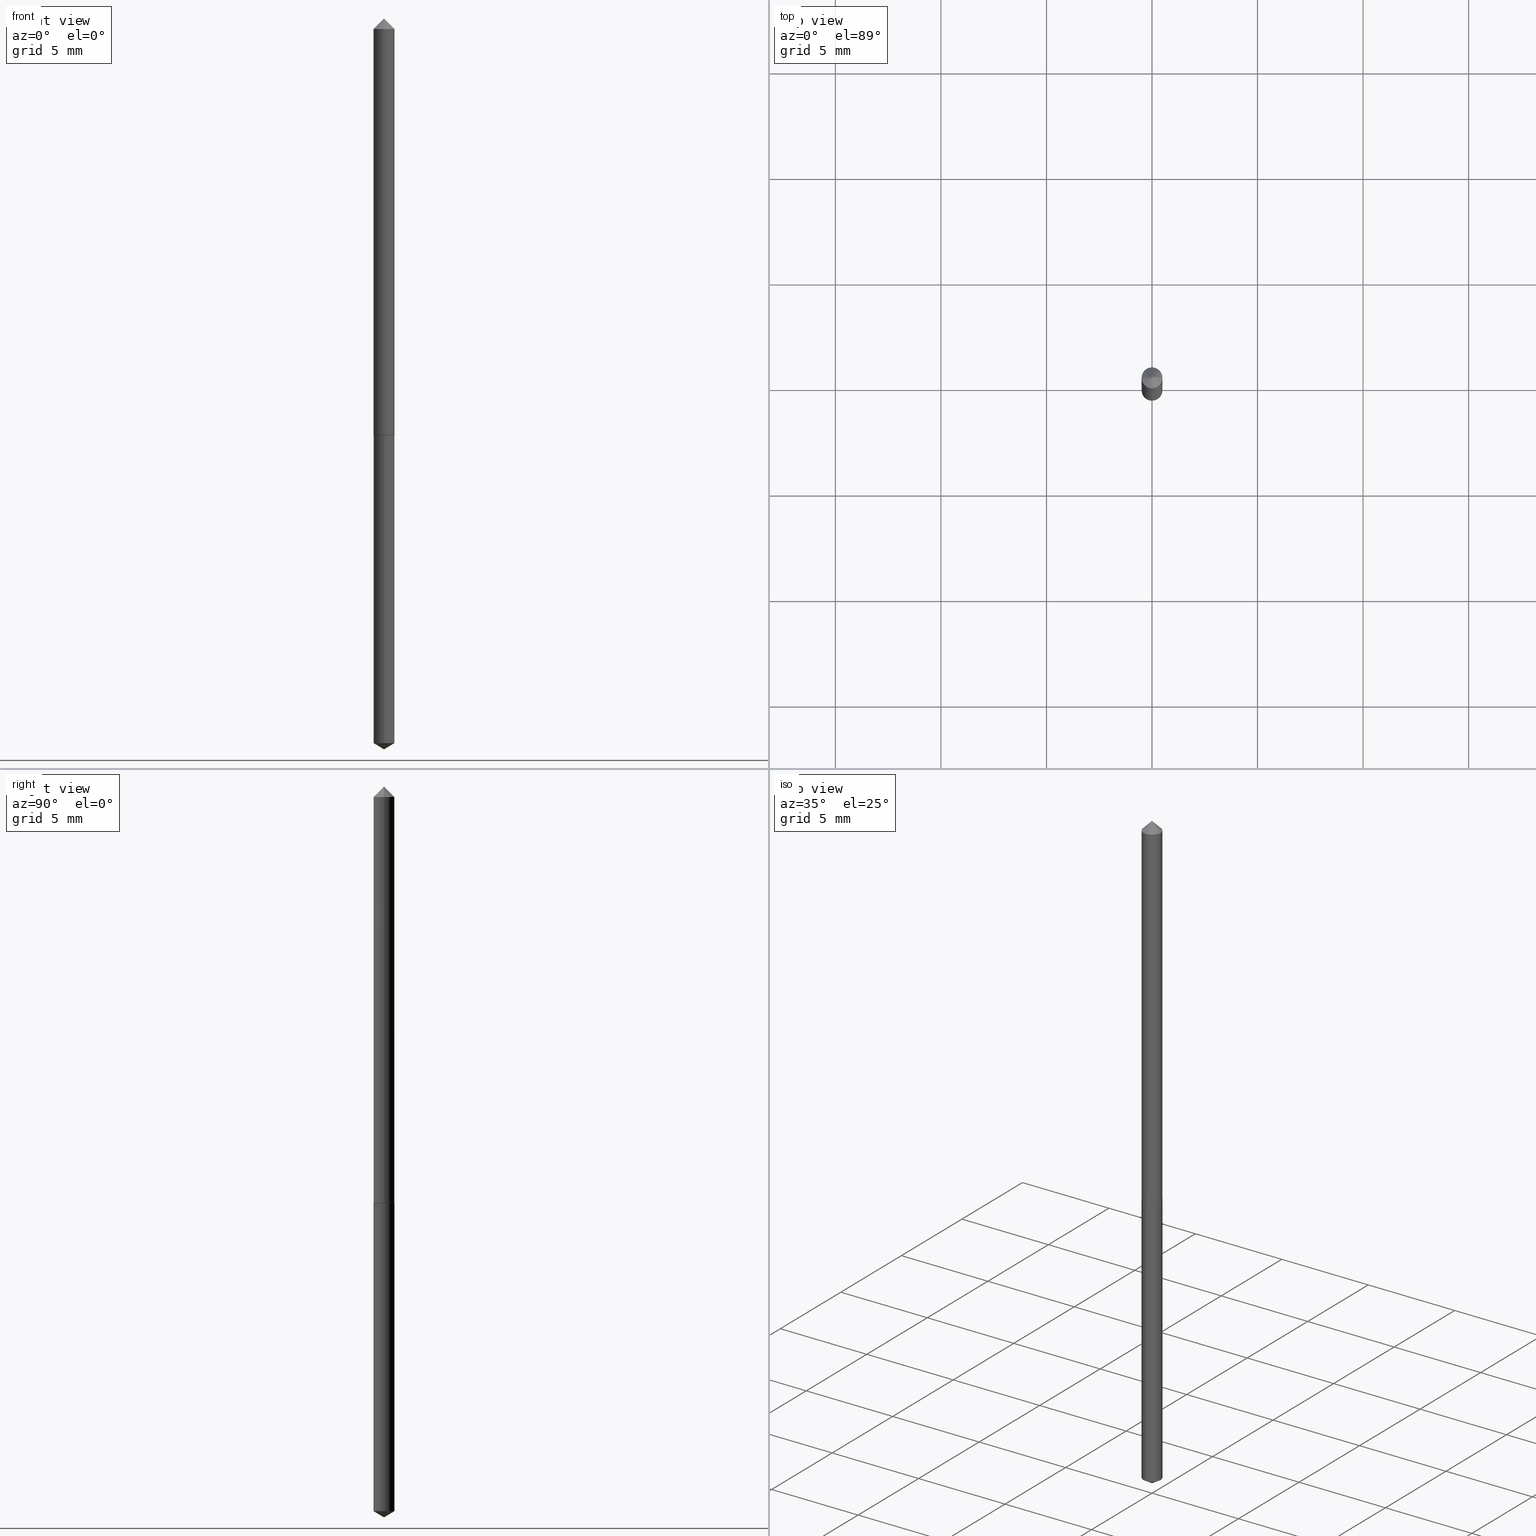
[diagram: canonical four-view strip — front | top / right | iso, engineering-drawing reading convention]
A machine part, canonical four-view strip (front | top / right | iso — engineering-drawing reading convention). The complete STEP part file that produces these views, byte-faithful:
ISO-10303-21;
HEADER;
FILE_DESCRIPTION (( 'STEP AP203' ),
    '1' );
FILE_NAME ('57097.STEP',
    '2024-04-22T22:05:55',
    ( '' ),
    ( '' ),
    'SwSTEP 2.0',
    'SolidWorks 2023',
    '' );
FILE_SCHEMA (( 'CONFIG_CONTROL_DESIGN' ));
ENDSEC;

DATA;
#1 = AXIS2_PLACEMENT_3D ( 'NONE', #55, #59, #218 ) ;
#2 = CARTESIAN_POINT ( 'NONE',  ( 1.929474888080073026E-29, -2.754778776347242283E-15, -0.7890000000000001457 ) ) ;
#3 = FACE_OUTER_BOUND ( 'NONE', #31, .T. ) ;
#4 = APPLICATION_PROTOCOL_DEFINITION ( 'international standard', 'config_control_design', 1994, #221 ) ;
#5 = EDGE_LOOP ( 'NONE', ( #9, #196, #199 ) ) ;
#6 = AXIS2_PLACEMENT_3D ( 'NONE', #135, #72, #233 ) ;
#7 = EDGE_LOOP ( 'NONE', ( #174, #228, #344 ) ) ;
#8 = PERSON_AND_ORGANIZATION_ROLE ( 'creator' ) ;
#9 = ORIENTED_EDGE ( 'NONE', *, *, #316, .F. ) ;
#10 = PERSON_AND_ORGANIZATION_ROLE ( 'design_supplier' ) ;
#11 = VERTEX_POINT ( 'NONE', #78 ) ;
#12 = CLOSED_SHELL ( 'NONE', ( #274, #161, #109, #250, #243, #81, #342 ) ) ;
#13 = AXIS2_PLACEMENT_3D ( 'NONE', #2, #306, #247 ) ;
#14 = DIRECTION ( 'NONE',  ( 0.000000000000000000, 0.000000000000000000, 1.000000000000000000 ) ) ;
#15 = ADVANCED_FACE ( 'NONE', ( #182 ), #34, .T. ) ;
#16 = LOCAL_TIME ( 18, 5, 55.00000000000000000, #88 ) ;
#17 = FACE_OUTER_BOUND ( 'NONE', #67, .T. ) ;
#18 = DIRECTION ( 'NONE',  ( 1.000000000000000000, -6.982962677686271444E-15, 0.000000000000000000 ) ) ;
#19 = ORIENTED_EDGE ( 'NONE', *, *, #238, .F. ) ;
#20 = AXIS2_PLACEMENT_3D ( 'NONE', #325, #154, #294 ) ;
#21 = DIRECTION ( 'NONE',  ( -2.445468806185136597E-29, 3.491481338843145583E-15, 1.000000000000000000 ) ) ;
#22 = ADVANCED_FACE ( 'NONE', ( #298 ), #363, .T. ) ;
#23 = LINE ( 'NONE', #136, #239 ) ;
#24 = CC_DESIGN_PERSON_AND_ORGANIZATION_ASSIGNMENT ( #254, #8, ( #230 ) ) ;
#25 = DIRECTION ( 'NONE',  ( 0.7071067811864569785, -2.468850131081308455E-15, 0.7071067811866380559 ) ) ;
#26 = DIRECTION ( 'NONE',  ( -2.445430218985429457E-29, 3.491536597909373207E-15, 1.000000000000000000 ) ) ;
#27 = LINE ( 'NONE', #83, #191 ) ;
#28 = APPROVAL_PERSON_ORGANIZATION ( #281, #283, #147 ) ;
#29 = DIRECTION ( 'NONE',  ( -2.445430218985429457E-29, 3.491536597909373207E-15, 1.000000000000000000 ) ) ;
#30 = DIRECTION ( 'NONE',  ( -1.000000000000000000, 6.982962677686265922E-15, 0.000000000000000000 ) ) ;
#31 = EDGE_LOOP ( 'NONE', ( #63, #231 ) ) ;
#32 = DATE_AND_TIME ( #289, #319 ) ;
#33 = EDGE_LOOP ( 'NONE', ( #94, #61, #171, #328 ) ) ;
#34 = CONICAL_SURFACE ( 'NONE', #57, 65.52281426576830370, 1.029744258676653645 ) ;
#35 = CIRCLE ( 'NONE', #13, 0.01900000000000005851 ) ;
#36 = EDGE_CURVE ( 'NONE', #76, #145, #212, .T. ) ;
#37 = ORIENTED_EDGE ( 'NONE', *, *, #338, .F. ) ;
#38 = CARTESIAN_POINT ( 'NONE',  ( 1.929474888080072746E-29, -2.754778776347241889E-15, -0.7889999999999999236 ) ) ;
#39 = EDGE_LOOP ( 'NONE', ( #249, #92, #37, #89 ) ) ;
#40 = VECTOR ( 'NONE', #160, 39.37007874015748143 ) ;
#41 = PERSON_AND_ORGANIZATION_ROLE ( 'creator' ) ;
#42 = MANIFOLD_SOLID_BREP ( 'Body-Move/Copy2[1]', #190 ) ;
#43 = CARTESIAN_POINT ( 'NONE',  ( 0.01950000000000010059, -2.889200807892702791E-15, -0.7884999999999999787 ) ) ;
#44 = PRODUCT_RELATED_PRODUCT_CATEGORY ( 'detail', '', ( #170 ) ) ;
#45 = CIRCLE ( 'NONE', #220, 0.01950000000000010059 ) ;
#46 = DIRECTION ( 'NONE',  ( -2.445468806185136877E-29, 3.491481338843145188E-15, 1.000000000000000000 ) ) ;
#47 = CARTESIAN_POINT ( 'NONE',  ( 3.333844423459752764E-29, -4.759909649311378600E-15, -1.363283217928962454 ) ) ;
#48 = ORIENTED_EDGE ( 'NONE', *, *, #71, .F. ) ;
#49 = CARTESIAN_POINT ( 'NONE',  ( 7.642090019328603538E-31, -1.091087918388490390E-16, -0.03125000000000021511 ) ) ;
#50 = AXIS2_PLACEMENT_3D ( 'NONE', #279, #82, #30 ) ;
#51 = CARTESIAN_POINT ( 'NONE',  ( -1.361677722148628817E-16, -0.01950000000000275124, -0.7889999999999999236 ) ) ;
#52 = CC_DESIGN_APPROVAL ( #64, ( #245 ) ) ;
#53 = CC_DESIGN_PERSON_AND_ORGANIZATION_ASSIGNMENT ( #60, #62, ( #170 ) ) ;
#54 = DIRECTION ( 'NONE',  ( -2.445430218985429457E-29, 3.491536597909373207E-15, 1.000000000000000000 ) ) ;
#55 = CARTESIAN_POINT ( 'NONE',  ( 1.928252153676979944E-29, -2.753033035677819991E-15, -0.7884999999999999787 ) ) ;
#56 = DIRECTION ( 'NONE',  ( -2.445430218985429457E-29, 3.491536597909373207E-15, 1.000000000000000000 ) ) ;
#57 = AXIS2_PLACEMENT_3D ( 'NONE', #299, #26, #313 ) ;
#58 = VECTOR ( 'NONE', #25, 39.37007874015748143 ) ;
#59 = DIRECTION ( 'NONE',  ( -2.445468806185136597E-29, 3.491481338843145583E-15, 1.000000000000000000 ) ) ;
#60 = PERSON_AND_ORGANIZATION ( #358, #96 ) ;
#61 = ORIENTED_EDGE ( 'NONE', *, *, #36, .T. ) ;
#62 = PERSON_AND_ORGANIZATION_ROLE ( 'design_owner' ) ;
#63 = ORIENTED_EDGE ( 'NONE', *, *, #338, .T. ) ;
#64 = APPROVAL ( #176, 'UNSPECIFIED' ) ;
#65 = CARTESIAN_POINT ( 'NONE',  ( 7.642090019328603538E-31, -1.091087918388490390E-16, -0.03125000000000021511 ) ) ;
#66 =( LENGTH_UNIT ( ) NAMED_UNIT ( * ) SI_UNIT ( $, .METRE. ) );
#67 = EDGE_LOOP ( 'NONE', ( #198, #286, #116, #19 ) ) ;
#68 = ORIENTED_EDGE ( 'NONE', *, *, #36, .F. ) ;
#69 = CIRCLE ( 'NONE', #208, 0.01949999999999999997 ) ;
#70 = AXIS2_PLACEMENT_3D ( 'NONE', #38, #339, #287 ) ;
#71 = EDGE_CURVE ( 'NONE', #203, #257, #102, .T. ) ;
#72 = DIRECTION ( 'NONE',  ( -2.445468806185136597E-29, 3.491481338843145583E-15, 1.000000000000000000 ) ) ;
#73 = PERSON_AND_ORGANIZATION ( #358, #96 ) ;
#74 = LOCAL_TIME ( 18, 5, 55.00000000000000000, #180 ) ;
#75 = CARTESIAN_POINT ( 'NONE',  ( -0.01950000000000004854, 1.385558334732198812E-16, -9.591923425997091666E-31 ) ) ;
#76 = VERTEX_POINT ( 'NONE', #177 ) ;
#77 = DIRECTION ( 'NONE',  ( -2.445468806185136597E-29, 3.491481338843145583E-15, 1.000000000000000000 ) ) ;
#78 = CARTESIAN_POINT ( 'NONE',  ( -1.361677722148488301E-16, -0.01950000000000476352, -1.363283217928962454 ) ) ;
#79 = FACE_OUTER_BOUND ( 'NONE', #33, .T. ) ;
#80 = DIRECTION ( 'NONE',  ( 1.000000000000000000, -6.982962677686271444E-15, 0.000000000000000000 ) ) ;
#81 = ADVANCED_FACE ( 'NONE', ( #240 ), #297, .T. ) ;
#82 = DIRECTION ( 'NONE',  ( 2.445468806185136597E-29, -3.491481338843145583E-15, -1.000000000000000000 ) ) ;
#83 = CARTESIAN_POINT ( 'NONE',  ( -0.01950000000000010059, -2.614477202204599937E-15, -0.7884999999999999787 ) ) ;
#84 = CYLINDRICAL_SURFACE ( 'NONE', #175, 0.01949999999999999997 ) ;
#85 = CIRCLE ( 'NONE', #70, 0.01949999999999999997 ) ;
#86 = EDGE_CURVE ( 'NONE', #11, #285, #133, .T. ) ;
#87 = ORIENTED_EDGE ( 'NONE', *, *, #316, .T. ) ;
#88 = COORDINATED_UNIVERSAL_TIME_OFFSET ( 5, 0, .BEHIND. ) ;
#89 = ORIENTED_EDGE ( 'NONE', *, *, #308, .F. ) ;
#90 = ORIENTED_EDGE ( 'NONE', *, *, #189, .F. ) ;
#91 = AXIS2_PLACEMENT_3D ( 'NONE', #169, #122, #194 ) ;
#92 = ORIENTED_EDGE ( 'NONE', *, *, #189, .T. ) ;
#93 = APPROVAL_STATUS ( 'not_yet_approved' ) ;
#94 = ORIENTED_EDGE ( 'NONE', *, *, #280, .F. ) ;
#95 = DIRECTION ( 'NONE',  ( 1.000000000000000000, -6.982962677686267499E-15, 4.876176775795936353E-29 ) ) ;
#96 = ORGANIZATION ( 'UNSPECIFIED', 'UNSPECIFIED', '' ) ;
#97 = LOCAL_TIME ( 18, 5, 55.00000000000000000, #296 ) ;
#98 = SHAPE_DEFINITION_REPRESENTATION ( #121, #211 ) ;
#99 = LINE ( 'NONE', #156, #103 ) ;
#100 = ORIENTED_EDGE ( 'NONE', *, *, #137, .T. ) ;
#101 = CARTESIAN_POINT ( 'NONE',  ( 0.000000000000000000, 0.000000000000000000, 0.000000000000000000 ) ) ;
#102 = CIRCLE ( 'NONE', #151, 0.01950000000000000344 ) ;
#103 = VECTOR ( 'NONE', #324, 39.37007874015748854 ) ;
#104 = DIRECTION ( 'NONE',  ( 1.000000000000000000, -6.982962677686265922E-15, 0.000000000000000000 ) ) ;
#105 = CARTESIAN_POINT ( 'NONE',  ( 3.362466551104965117E-29, -4.800862822125388456E-15, -1.375000000000000000 ) ) ;
#106 = CARTESIAN_POINT ( 'NONE',  ( 1.928252153676979944E-29, -2.753033035677819991E-15, -0.7884999999999999787 ) ) ;
#107 = ORIENTED_EDGE ( 'NONE', *, *, #86, .F. ) ;
#108 = CC_DESIGN_APPROVAL ( #155, ( #230 ) ) ;
#109 = ADVANCED_FACE ( 'NONE', ( #17 ), #301, .T. ) ;
#110 = CARTESIAN_POINT ( 'NONE',  ( 1.929474888080072746E-29, -2.754778776347241889E-15, -0.7889999999999999236 ) ) ;
#111 = DIRECTION ( 'NONE',  ( 6.982962677686265922E-15, 1.000000000000000000, -3.491536597909373207E-15 ) ) ;
#112 = PLANE ( 'NONE',  #360 ) ;
#113 = AXIS2_PLACEMENT_3D ( 'NONE', #181, #322, #235 ) ;
#114 = DATE_AND_TIME ( #309, #184 ) ;
#115 = AXIS2_PLACEMENT_3D ( 'NONE', #355, #21, #18 ) ;
#116 = ORIENTED_EDGE ( 'NONE', *, *, #153, .F. ) ;
#117 = EDGE_CURVE ( 'NONE', #285, #11, #69, .T. ) ;
#118 = DATE_TIME_ROLE ( 'creation_date' ) ;
#119 = PERSON_AND_ORGANIZATION ( #358, #96 ) ;
#120 = ORIENTED_EDGE ( 'NONE', *, *, #137, .F. ) ;
#121 = PRODUCT_DEFINITION_SHAPE ( 'NONE', 'NONE',  #352 ) ;
#122 = DIRECTION ( 'NONE',  ( -2.445468806185136597E-29, 3.491481338843145583E-15, 1.000000000000000000 ) ) ;
#123 = ORIENTED_EDGE ( 'NONE', *, *, #304, .F. ) ;
#124 = CONICAL_SURFACE ( 'NONE', #50, 0.01950000000000000344, 0.7853981633974449483 ) ;
#125 = MECHANICAL_CONTEXT ( 'NONE', #204, 'mechanical' ) ;
#126 = PERSON_AND_ORGANIZATION ( #358, #96 ) ;
#127 = CONICAL_SURFACE ( 'NONE', #1, 0.01950000000000010059, 0.7853981633973202703 ) ;
#128 = CC_DESIGN_PERSON_AND_ORGANIZATION_ASSIGNMENT ( #73, #262, ( #245 ) ) ;
#129 = DIRECTION ( 'NONE',  ( -2.445468806185136597E-29, 3.491481338843145583E-15, 1.000000000000000000 ) ) ;
#130 = EDGE_CURVE ( 'NONE', #148, #203, #354, .T. ) ;
#131 = APPROVAL_ROLE ( '' ) ;
#132 = CYLINDRICAL_SURFACE ( 'NONE', #6, 0.01950000000000004854 ) ;
#133 = CIRCLE ( 'NONE', #113, 0.01949999999999999997 ) ;
#134 = AXIS2_PLACEMENT_3D ( 'NONE', #65, #252, #229 ) ;
#135 = CARTESIAN_POINT ( 'NONE',  ( 0.000000000000000000, 0.000000000000000000, 0.000000000000000000 ) ) ;
#136 = CARTESIAN_POINT ( 'NONE',  ( 3.362527975644799677E-29, -4.800775623318879708E-15, -1.375000000000000000 ) ) ;
#137 = EDGE_CURVE ( 'NONE', #315, #257, #270, .T. ) ;
#138 = DIRECTION ( 'NONE',  ( 1.000000000000000000, -6.982962677686265922E-15, 4.876176775795935793E-29 ) ) ;
#139 = CARTESIAN_POINT ( 'NONE',  ( -9.291428327861137563E-28, 1.326612515611114561E-13, 37.99507874015748143 ) ) ;
#140 = DIRECTION ( 'NONE',  ( 0.7071067811865451302, -7.319954787623248157E-15, -0.7071067811865499042 ) ) ;
#141 = LINE ( 'NONE', #244, #277 ) ;
#142 = ORIENTED_EDGE ( 'NONE', *, *, #187, .F. ) ;
#143 = DATE_AND_TIME ( #197, #16 ) ;
#144 = VECTOR ( 'NONE', #29, 39.37007874015748143 ) ;
#145 = VERTEX_POINT ( 'NONE', #263 ) ;
#146 = PERSON_AND_ORGANIZATION ( #358, #96 ) ;
#147 = APPROVAL_ROLE ( '' ) ;
#148 = VERTEX_POINT ( 'NONE', #43 ) ;
#149 =( NAMED_UNIT ( * ) PLANE_ANGLE_UNIT ( ) SI_UNIT ( $, .RADIAN. ) );
#150 = VERTEX_POINT ( 'NONE', #158 ) ;
#151 = AXIS2_PLACEMENT_3D ( 'NONE', #49, #359, #104 ) ;
#152 = AXIS2_PLACEMENT_3D ( 'NONE', #303, #54, #335 ) ;
#153 = EDGE_CURVE ( 'NONE', #148, #315, #258, .T. ) ;
#154 = DIRECTION ( 'NONE',  ( -2.445468806185136597E-29, 3.491481338843145583E-15, 1.000000000000000000 ) ) ;
#155 = APPROVAL ( #341, 'UNSPECIFIED' ) ;
#156 = CARTESIAN_POINT ( 'NONE',  ( 3.362466551104965117E-29, -4.800862822125388456E-15, -1.375000000000000000 ) ) ;
#157 = CIRCLE ( 'NONE', #152, 0.01949999999999999997 ) ;
#158 = CARTESIAN_POINT ( 'NONE',  ( -1.361677722148628817E-16, -0.01950000000000275124, -0.7889999999999999236 ) ) ;
#159 = DIRECTION ( 'NONE',  ( -2.445430218985429457E-29, 3.491536597909373207E-15, 1.000000000000000000 ) ) ;
#160 = DIRECTION ( 'NONE',  ( -2.445430218985429457E-29, 3.491536597909373207E-15, 1.000000000000000000 ) ) ;
#161 = ADVANCED_FACE ( 'NONE', ( #209 ), #132, .T. ) ;
#162 = ORIENTED_EDGE ( 'NONE', *, *, #130, .T. ) ;
#163 = CARTESIAN_POINT ( 'NONE',  ( -2.031386624105738011E-29, -8.426957900034326842E-15, -0.7889999999999999236 ) ) ;
#164 = DIRECTION ( 'NONE',  ( 2.445430218985429176E-29, -3.491536597909373207E-15, -1.000000000000000000 ) ) ;
#165 = CARTESIAN_POINT ( 'NONE',  ( 1.929474888080072746E-29, -2.754778776347241889E-15, -0.7889999999999999236 ) ) ;
#166 = DIRECTION ( 'NONE',  ( -2.445430218985429457E-29, 3.491536597909373207E-15, 1.000000000000000000 ) ) ;
#167 = ORIENTED_EDGE ( 'NONE', *, *, #195, .F. ) ;
#168 = EDGE_LOOP ( 'NONE', ( #120, #340, #162, #201 ) ) ;
#169 = CARTESIAN_POINT ( 'NONE',  ( 7.642090019328603538E-31, -1.091087918388490390E-16, -0.03125000000000021511 ) ) ;
#170 = PRODUCT ( '57097', '57097', '', ( #125 ) ) ;
#171 = ORIENTED_EDGE ( 'NONE', *, *, #238, .T. ) ;
#172 = ORIENTED_EDGE ( 'NONE', *, *, #308, .T. ) ;
#173 = COORDINATED_UNIVERSAL_TIME_OFFSET ( 5, 0, .BEHIND. ) ;
#174 = ORIENTED_EDGE ( 'NONE', *, *, #205, .F. ) ;
#175 = AXIS2_PLACEMENT_3D ( 'NONE', #110, #166, #192 ) ;
#176 = APPROVAL_STATUS ( 'not_yet_approved' ) ;
#177 = CARTESIAN_POINT ( 'NONE',  ( -0.01900000000000005851, -2.617126429378711138E-15, -0.7890000000000001457 ) ) ;
#178 = CARTESIAN_POINT ( 'NONE',  ( 0.01950000000000004854, -1.361677722148825539E-16, 9.508544712802099179E-31 ) ) ;
#179 = AXIS2_PLACEMENT_3D ( 'NONE', #317, #14, #348 ) ;
#180 = COORDINATED_UNIVERSAL_TIME_OFFSET ( 5, 0, .BEHIND. ) ;
#181 = CARTESIAN_POINT ( 'NONE',  ( 3.333844423459752764E-29, -4.759909649311378600E-15, -1.363283217928962454 ) ) ;
#182 = FACE_OUTER_BOUND ( 'NONE', #347, .T. ) ;
#183 = FACE_OUTER_BOUND ( 'NONE', #39, .T. ) ;
#184 = LOCAL_TIME ( 18, 5, 55.00000000000000000, #255 ) ;
#185 = CARTESIAN_POINT ( 'NONE',  ( 1.385558334732387892E-16, 0.01949999999999724523, -0.7889999999999999236 ) ) ;
#186 = CARTESIAN_POINT ( 'NONE',  ( -0.01950000000000000344, -1.292515080285113506E-15, -0.03125000000000021511 ) ) ;
#187 = EDGE_CURVE ( 'NONE', #288, #11, #99, .T. ) ;
#188 = CARTESIAN_POINT ( 'NONE',  ( 0.01950000000000010059, -2.889200807892702791E-15, -0.7884999999999999787 ) ) ;
#189 = EDGE_CURVE ( 'NONE', #285, #226, #307, .T. ) ;
#190 = CLOSED_SHELL ( 'NONE', ( #256, #15, #292, #22, #241 ) ) ;
#191 = VECTOR ( 'NONE', #305, 39.37007874015748143 ) ;
#192 = DIRECTION ( 'NONE',  ( -6.982962677686264344E-15, -1.000000000000000000, 0.000000000000000000 ) ) ;
#193 = DESIGN_CONTEXT ( 'detailed design', #221, 'design' ) ;
#194 = DIRECTION ( 'NONE',  ( 1.000000000000000000, -6.982962677686265922E-15, 0.000000000000000000 ) ) ;
#195 = EDGE_CURVE ( 'NONE', #145, #76, #35, .T. ) ;
#196 = ORIENTED_EDGE ( 'NONE', *, *, #187, .T. ) ;
#197 = CALENDAR_DATE ( 2024, 22, 4 ) ;
#198 = ORIENTED_EDGE ( 'NONE', *, *, #195, .T. ) ;
#199 = ORIENTED_EDGE ( 'NONE', *, *, #117, .F. ) ;
#200 = LENGTH_MEASURE_WITH_UNIT ( LENGTH_MEASURE( 0.02539999999999999897 ), #66 );
#201 = ORIENTED_EDGE ( 'NONE', *, *, #350, .F. ) ;
#202 =( CONVERSION_BASED_UNIT ( 'INCH', #200 ) LENGTH_UNIT ( ) NAMED_UNIT ( #356 ) );
#203 = VERTEX_POINT ( 'NONE', #332 ) ;
#204 = APPLICATION_CONTEXT ( 'configuration controlled 3d designs of mechanical parts and assemblies' ) ;
#205 = EDGE_CURVE ( 'NONE', #253, #203, #141, .T. ) ;
#206 = AXIS2_PLACEMENT_3D ( 'NONE', #207, #129, #271 ) ;
#207 = CARTESIAN_POINT ( 'NONE',  ( 1.929474888080073026E-29, -2.754778776347242283E-15, -0.7890000000000001457 ) ) ;
#208 = AXIS2_PLACEMENT_3D ( 'NONE', #47, #159, #265 ) ;
#209 = FACE_OUTER_BOUND ( 'NONE', #259, .T. ) ;
#210 = CC_DESIGN_PERSON_AND_ORGANIZATION_ASSIGNMENT ( #146, #41, ( #352 ) ) ;
#211 = ADVANCED_BREP_SHAPE_REPRESENTATION ( '57097', ( #42, #334, #179 ), #345 ) ;
#212 = CIRCLE ( 'NONE', #206, 0.01900000000000005851 ) ;
#213 = DIRECTION ( 'NONE',  ( -6.982962677686264344E-15, -1.000000000000000000, 0.000000000000000000 ) ) ;
#214 = DIRECTION ( 'NONE',  ( -6.982962677686264344E-15, -1.000000000000000000, 3.468864327941600919E-15 ) ) ;
#215 = CC_DESIGN_DATE_AND_TIME_ASSIGNMENT ( #143, #118, ( #352 ) ) ;
#216 = FACE_OUTER_BOUND ( 'NONE', #310, .T. ) ;
#217 = FACE_OUTER_BOUND ( 'NONE', #343, .T. ) ;
#218 = DIRECTION ( 'NONE',  ( 1.000000000000000000, -6.982962677686271444E-15, 0.000000000000000000 ) ) ;
#219 = CARTESIAN_POINT ( 'NONE',  ( 2.836167268008044232E-31, -4.155846979266979156E-17, -0.01175000000000007983 ) ) ;
#220 = AXIS2_PLACEMENT_3D ( 'NONE', #106, #330, #80 ) ;
#221 = APPLICATION_CONTEXT ( 'configuration controlled 3d designs of mechanical parts and assemblies' ) ;
#222 = PERSON_AND_ORGANIZATION ( #358, #96 ) ;
#223 = ORIENTED_EDGE ( 'NONE', *, *, #205, .T. ) ;
#224 = EDGE_CURVE ( 'NONE', #226, #150, #157, .T. ) ;
#225 = APPROVAL_DATE_TIME ( #32, #283 ) ;
#226 = VERTEX_POINT ( 'NONE', #278 ) ;
#227 = FACE_OUTER_BOUND ( 'NONE', #7, .T. ) ;
#228 = ORIENTED_EDGE ( 'NONE', *, *, #304, .T. ) ;
#229 = DIRECTION ( 'NONE',  ( -1.000000000000000000, 6.982962677686265922E-15, 0.000000000000000000 ) ) ;
#230 = PRODUCT_DEFINITION_FORMATION_WITH_SPECIFIED_SOURCE ( 'ANY', '', #170, .NOT_KNOWN. ) ;
#231 = ORIENTED_EDGE ( 'NONE', *, *, #224, .T. ) ;
#232 = EDGE_LOOP ( 'NONE', ( #90, #349, #172, #318 ) ) ;
#233 = DIRECTION ( 'NONE',  ( 1.000000000000000000, -6.982962677686267499E-15, 4.876176775795936353E-29 ) ) ;
#234 = CC_DESIGN_DATE_AND_TIME_ASSIGNMENT ( #351, #269, ( #245 ) ) ;
#235 = DIRECTION ( 'NONE',  ( -6.982962677686264344E-15, -1.000000000000000000, 0.000000000000000000 ) ) ;
#236 = AXIS2_PLACEMENT_3D ( 'NONE', #101, #77, #95 ) ;
#237 = VECTOR ( 'NONE', #300, 39.37007874015748143 ) ;
#238 = EDGE_CURVE ( 'NONE', #145, #148, #362, .T. ) ;
#239 = VECTOR ( 'NONE', #242, 39.37007874015748143 ) ;
#240 = FACE_OUTER_BOUND ( 'NONE', #168, .T. ) ;
#241 = ADVANCED_FACE ( 'NONE', ( #3 ), #364, .F. ) ;
#242 = DIRECTION ( 'NONE',  ( 6.090539988449776858E-15, 0.8571673007021136659, 0.5150380749100519351 ) ) ;
#243 = ADVANCED_FACE ( 'NONE', ( #79 ), #127, .T. ) ;
#244 = CARTESIAN_POINT ( 'NONE',  ( 0.01950000000000000344, -2.428885027953939081E-16, -0.03125000000000021511 ) ) ;
#245 = SECURITY_CLASSIFICATION ( '', '', #268 ) ;
#246 = LINE ( 'NONE', #329, #237 ) ;
#247 = DIRECTION ( 'NONE',  ( 1.000000000000000000, -6.982962677686260400E-15, 0.000000000000000000 ) ) ;
#248 = APPROVAL_ROLE ( '' ) ;
#249 = ORIENTED_EDGE ( 'NONE', *, *, #86, .T. ) ;
#250 = ADVANCED_FACE ( 'NONE', ( #216 ), #112, .F. ) ;
#251 = CONICAL_SURFACE ( 'NONE', #134, 0.01950000000000000344, 0.7853981633974449483 ) ;
#252 = DIRECTION ( 'NONE',  ( 2.445468806185136597E-29, -3.491481338843145583E-15, -1.000000000000000000 ) ) ;
#253 = VERTEX_POINT ( 'NONE', #219 ) ;
#254 = PERSON_AND_ORGANIZATION ( #358, #96 ) ;
#255 = COORDINATED_UNIVERSAL_TIME_OFFSET ( 5, 0, .BEHIND. ) ;
#256 = ADVANCED_FACE ( 'NONE', ( #183 ), #84, .T. ) ;
#257 = VERTEX_POINT ( 'NONE', #186 ) ;
#258 = CIRCLE ( 'NONE', #115, 0.01950000000000010059 ) ;
#259 = EDGE_LOOP ( 'NONE', ( #290, #100, #48, #312 ) ) ;
#260 = CALENDAR_DATE ( 2024, 22, 4 ) ;
#261 = CARTESIAN_POINT ( 'NONE',  ( 1.929474888080072746E-29, -2.754778776347241889E-15, -0.7889999999999999236 ) ) ;
#262 = PERSON_AND_ORGANIZATION_ROLE ( 'classification_officer' ) ;
#263 = CARTESIAN_POINT ( 'NONE',  ( 0.01900000000000005851, -2.887455067223281682E-15, -0.7890000000000001457 ) ) ;
#264 = CALENDAR_DATE ( 2024, 22, 4 ) ;
#265 = DIRECTION ( 'NONE',  ( -6.982962677686264344E-15, -1.000000000000000000, 0.000000000000000000 ) ) ;
#266 = CC_DESIGN_APPROVAL ( #283, ( #352 ) ) ;
#267 = APPROVAL_PERSON_ORGANIZATION ( #126, #64, #131 ) ;
#268 = SECURITY_CLASSIFICATION_LEVEL ( 'unclassified' ) ;
#269 = DATE_TIME_ROLE ( 'classification_date' ) ;
#270 = LINE ( 'NONE', #75, #295 ) ;
#271 = DIRECTION ( 'NONE',  ( 1.000000000000000000, -6.982962677686260400E-15, 0.000000000000000000 ) ) ;
#272 = CONICAL_SURFACE ( 'NONE', #326, 65.52281426576830370, 1.029744258676653645 ) ;
#273 = CARTESIAN_POINT ( 'NONE',  ( -0.01950000000000010059, -2.614477202204599937E-15, -0.7884999999999999787 ) ) ;
#274 = ADVANCED_FACE ( 'NONE', ( #217 ), #124, .T. ) ;
#275 = DIRECTION ( 'NONE',  ( -2.438088387897960049E-29, 3.491481338843145188E-15, 1.000000000000000000 ) ) ;
#276 = FACE_OUTER_BOUND ( 'NONE', #5, .T. ) ;
#277 = VECTOR ( 'NONE', #140, 39.37007874015748143 ) ;
#278 = CARTESIAN_POINT ( 'NONE',  ( 1.385558334732529147E-16, 0.01949999999999724523, -0.7889999999999999236 ) ) ;
#279 = CARTESIAN_POINT ( 'NONE',  ( 7.642090019328603538E-31, -1.091087918388490390E-16, -0.03125000000000021511 ) ) ;
#280 = EDGE_CURVE ( 'NONE', #76, #315, #27, .T. ) ;
#281 = PERSON_AND_ORGANIZATION ( #358, #96 ) ;
#282 = ORIENTED_EDGE ( 'NONE', *, *, #71, .T. ) ;
#283 = APPROVAL ( #93, 'UNSPECIFIED' ) ;
#284 = AXIS2_PLACEMENT_3D ( 'NONE', #165, #164, #111 ) ;
#285 = VERTEX_POINT ( 'NONE', #361 ) ;
#286 = ORIENTED_EDGE ( 'NONE', *, *, #280, .T. ) ;
#287 = DIRECTION ( 'NONE',  ( -6.982962677686264344E-15, -1.000000000000000000, 0.000000000000000000 ) ) ;
#288 = VERTEX_POINT ( 'NONE', #105 ) ;
#289 = CALENDAR_DATE ( 2024, 22, 4 ) ;
#290 = ORIENTED_EDGE ( 'NONE', *, *, #153, .T. ) ;
#291 = DIRECTION ( 'NONE',  ( -2.445468806185136877E-29, 3.491481338843145188E-15, 1.000000000000000000 ) ) ;
#292 = ADVANCED_FACE ( 'NONE', ( #276 ), #272, .T. ) ;
#293 = APPROVAL_DATE_TIME ( #323, #64 ) ;
#294 = DIRECTION ( 'NONE',  ( 1.000000000000000000, -6.982962677686271444E-15, 0.000000000000000000 ) ) ;
#295 = VECTOR ( 'NONE', #291, 39.37007874015748143 ) ;
#296 = COORDINATED_UNIVERSAL_TIME_OFFSET ( 5, 0, .BEHIND. ) ;
#297 = CYLINDRICAL_SURFACE ( 'NONE', #236, 0.01950000000000004854 ) ;
#298 = FACE_OUTER_BOUND ( 'NONE', #232, .T. ) ;
#299 = CARTESIAN_POINT ( 'NONE',  ( -9.291428327861137563E-28, 1.326612515611114561E-13, 37.99507874015748143 ) ) ;
#300 = DIRECTION ( 'NONE',  ( -0.7071067811865451302, 2.468850131082231817E-15, -0.7071067811865499042 ) ) ;
#301 = CONICAL_SURFACE ( 'NONE', #20, 0.01950000000000010059, 0.7853981633973202703 ) ;
#302 = VECTOR ( 'NONE', #46, 39.37007874015748143 ) ;
#303 = CARTESIAN_POINT ( 'NONE',  ( 1.929474888080072746E-29, -2.754778776347241889E-15, -0.7889999999999999236 ) ) ;
#304 = EDGE_CURVE ( 'NONE', #253, #257, #246, .T. ) ;
#305 = DIRECTION ( 'NONE',  ( -0.7071067811864569785, 7.493145998870027572E-15, 0.7071067811866380559 ) ) ;
#306 = DIRECTION ( 'NONE',  ( -2.445468806185136597E-29, 3.491481338843145583E-15, 1.000000000000000000 ) ) ;
#307 = LINE ( 'NONE', #185, #144 ) ;
#308 = EDGE_CURVE ( 'NONE', #11, #150, #333, .T. ) ;
#309 = CALENDAR_DATE ( 2024, 22, 4 ) ;
#310 = EDGE_LOOP ( 'NONE', ( #167, #68 ) ) ;
#311 = APPROVAL_DATE_TIME ( #114, #155 ) ;
#312 = ORIENTED_EDGE ( 'NONE', *, *, #130, .F. ) ;
#313 = DIRECTION ( 'NONE',  ( -6.982962677686264344E-15, -1.000000000000000000, 3.468864327941600919E-15 ) ) ;
#314 = APPLICATION_PROTOCOL_DEFINITION ( 'international standard', 'config_control_design', 1994, #204 ) ;
#315 = VERTEX_POINT ( 'NONE', #273 ) ;
#316 = EDGE_CURVE ( 'NONE', #288, #285, #23, .T. ) ;
#317 = CARTESIAN_POINT ( 'NONE',  ( 0.000000000000000000, 0.000000000000000000, 0.000000000000000000 ) ) ;
#318 = ORIENTED_EDGE ( 'NONE', *, *, #224, .F. ) ;
#319 = LOCAL_TIME ( 18, 5, 55.00000000000000000, #173 ) ;
#320 = EDGE_CURVE ( 'NONE', #315, #148, #45, .T. ) ;
#321 = CC_DESIGN_PERSON_AND_ORGANIZATION_ASSIGNMENT ( #119, #10, ( #230 ) ) ;
#322 = DIRECTION ( 'NONE',  ( -2.445430218985429457E-29, 3.491536597909373207E-15, 1.000000000000000000 ) ) ;
#323 = DATE_AND_TIME ( #260, #97 ) ;
#324 = DIRECTION ( 'NONE',  ( -5.985567269335938913E-15, -0.8571673007021100021, 0.5150380749100579303 ) ) ;
#325 = CARTESIAN_POINT ( 'NONE',  ( 1.928252153676979944E-29, -2.753033035677819991E-15, -0.7884999999999999787 ) ) ;
#326 = AXIS2_PLACEMENT_3D ( 'NONE', #139, #56, #214 ) ;
#327 = CC_DESIGN_SECURITY_CLASSIFICATION ( #245, ( #230 ) ) ;
#328 = ORIENTED_EDGE ( 'NONE', *, *, #320, .F. ) ;
#329 = CARTESIAN_POINT ( 'NONE',  ( -0.01950000000000000344, 2.705898037603317589E-17, -0.03125000000000021511 ) ) ;
#330 = DIRECTION ( 'NONE',  ( -2.445468806185136597E-29, 3.491481338843145583E-15, 1.000000000000000000 ) ) ;
#331 = AXIS2_PLACEMENT_3D ( 'NONE', #261, #357, #213 ) ;
#332 = CARTESIAN_POINT ( 'NONE',  ( 0.01950000000000000344, -2.452765640537312601E-16, -0.03125000000000021511 ) ) ;
#333 = LINE ( 'NONE', #51, #40 ) ;
#334 = MANIFOLD_SOLID_BREP ( 'Body-Move/Copy2[2]', #12 ) ;
#335 = DIRECTION ( 'NONE',  ( -6.982962677686264344E-15, -1.000000000000000000, 0.000000000000000000 ) ) ;
#336 = CIRCLE ( 'NONE', #91, 0.01950000000000000344 ) ;
#337 = UNCERTAINTY_MEASURE_WITH_UNIT (LENGTH_MEASURE( 1.000000000000000082E-05 ), #202, 'distance_accuracy_value', 'NONE');
#338 = EDGE_CURVE ( 'NONE', #150, #226, #85, .T. ) ;
#339 = DIRECTION ( 'NONE',  ( -2.445430218985429457E-29, 3.491536597909373207E-15, 1.000000000000000000 ) ) ;
#340 = ORIENTED_EDGE ( 'NONE', *, *, #320, .T. ) ;
#341 = APPROVAL_STATUS ( 'not_yet_approved' ) ;
#342 = ADVANCED_FACE ( 'NONE', ( #227 ), #251, .T. ) ;
#343 = EDGE_LOOP ( 'NONE', ( #123, #223, #282 ) ) ;
#344 = ORIENTED_EDGE ( 'NONE', *, *, #350, .T. ) ;
#345 =( GEOMETRIC_REPRESENTATION_CONTEXT ( 3 ) GLOBAL_UNCERTAINTY_ASSIGNED_CONTEXT ( ( #337 ) ) GLOBAL_UNIT_ASSIGNED_CONTEXT ( ( #202, #149, #346 ) ) REPRESENTATION_CONTEXT ( 'NONE', 'WORKASPACE' ) );
#346 =( NAMED_UNIT ( * ) SI_UNIT ( $, .STERADIAN. ) SOLID_ANGLE_UNIT ( ) );
#347 = EDGE_LOOP ( 'NONE', ( #142, #87, #107 ) ) ;
#348 = DIRECTION ( 'NONE',  ( 1.000000000000000000, 0.000000000000000000, 0.000000000000000000 ) ) ;
#349 = ORIENTED_EDGE ( 'NONE', *, *, #117, .T. ) ;
#350 = EDGE_CURVE ( 'NONE', #257, #203, #336, .T. ) ;
#351 = DATE_AND_TIME ( #264, #74 ) ;
#352 = PRODUCT_DEFINITION ( 'UNKNOWN', '', #230, #193 ) ;
#353 = APPROVAL_PERSON_ORGANIZATION ( #222, #155, #248 ) ;
#354 = LINE ( 'NONE', #178, #302 ) ;
#355 = CARTESIAN_POINT ( 'NONE',  ( 1.928252153676979944E-29, -2.753033035677819991E-15, -0.7884999999999999787 ) ) ;
#356 = DIMENSIONAL_EXPONENTS ( 1.000000000000000000, 0.000000000000000000, 0.000000000000000000, 0.000000000000000000, 0.000000000000000000, 0.000000000000000000, 0.000000000000000000 ) ;
#357 = DIRECTION ( 'NONE',  ( -2.445430218985429457E-29, 3.491536597909373207E-15, 1.000000000000000000 ) ) ;
#358 = PERSON ( 'UNSPECIFIED', 'UNSPECIFIED', 'UNSPECIFIED', ('UNSPECIFIED'), ('UNSPECIFIED'), ('UNSPECIFIED') ) ;
#359 = DIRECTION ( 'NONE',  ( -2.445468806185136597E-29, 3.491481338843145583E-15, 1.000000000000000000 ) ) ;
#360 = AXIS2_PLACEMENT_3D ( 'NONE', #163, #275, #138 ) ;
#361 = CARTESIAN_POINT ( 'NONE',  ( 1.385558334732528161E-16, 0.01949999999999523989, -1.363283217928962454 ) ) ;
#362 = LINE ( 'NONE', #188, #58 ) ;
#363 = CYLINDRICAL_SURFACE ( 'NONE', #331, 0.01949999999999999997 ) ;
#364 = PLANE ( 'NONE',  #284 ) ;
ENDSEC;
END-ISO-10303-21;
